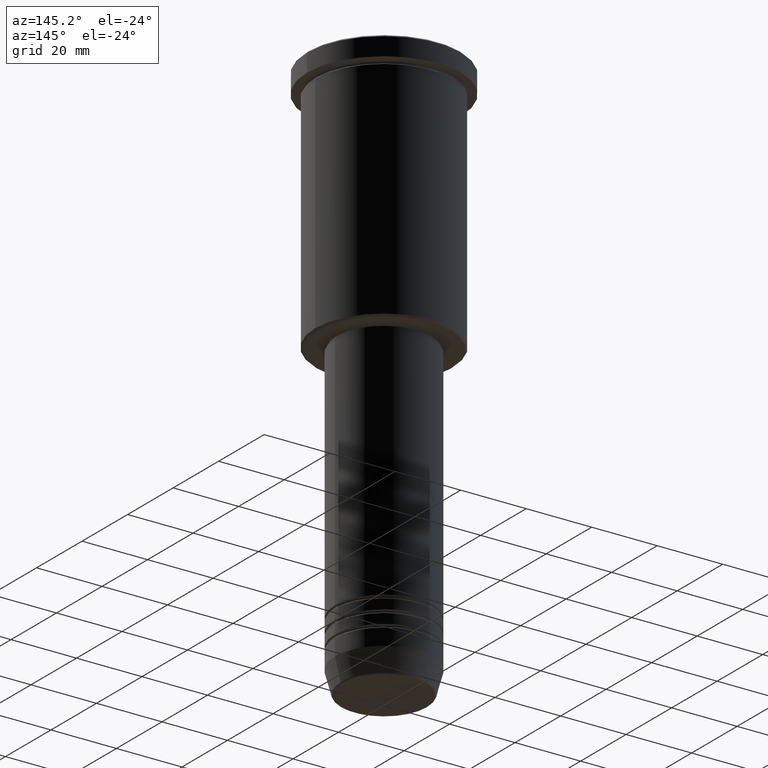
[diagram: clean part render]
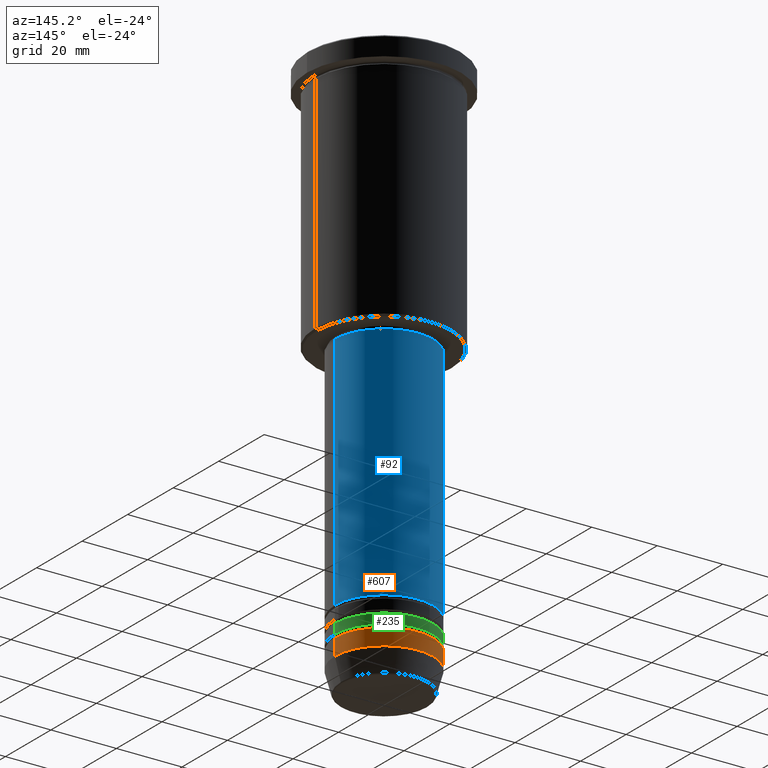
[diagram: same view with three faces highlighted in distinct colors, each labeled with its STEP entity id]
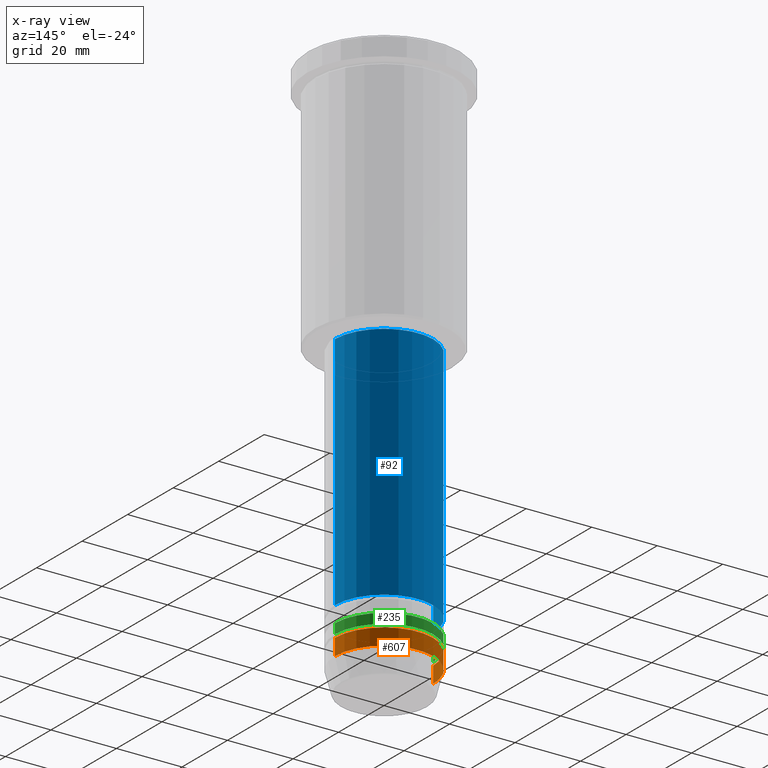
[diagram: x-ray of the same camera — body ghosted, the three highlighted faces saturated]
A machine part, auxiliary view with three faces highlighted in distinct colors.
The next image is the same camera in x-ray (body ghosted, the three faces saturated) — at least one of them is partly hidden behind the body in this view.
Their STEP definitions:

[orange] entity #607 — the highlighted cylindrical surface (partial cylindrical patch) has radius 15 mm, axis along (-0, -0, 1).
#22 = CARTESIAN_POINT ( 'NONE',  ( -15.00000000000000000, 1.836970198721029589E-15, -163.9999999999999716 ) ) ;
#27 = ORIENTED_EDGE ( 'NONE', *, *, #866, .T. ) ;
#35 = EDGE_CURVE ( 'NONE', #558, #897, #827, .T. ) ;
#36 = CARTESIAN_POINT ( 'NONE',  ( 0.000000000000000000, 0.000000000000000000, 0.000000000000000000 ) ) ;
#88 = DIRECTION ( 'NONE',  ( 1.000000000000000000, 0.000000000000000000, 0.000000000000000000 ) ) ;
#130 = VERTEX_POINT ( 'NONE', #305 ) ;
#138 = ORIENTED_EDGE ( 'NONE', *, *, #350, .F. ) ;
#145 = CIRCLE ( 'NONE', #816, 15.00000000000000000 ) ;
#220 = ORIENTED_EDGE ( 'NONE', *, *, #35, .T. ) ;
#261 = VECTOR ( 'NONE', #488, 1000.000000000000000 ) ;
#303 = FACE_OUTER_BOUND ( 'NONE', #385, .T. ) ;
#305 = CARTESIAN_POINT ( 'NONE',  ( 15.00000000000000000, 0.000000000000000000, -163.9999999999999716 ) ) ;
#317 = AXIS2_PLACEMENT_3D ( 'NONE', #507, #513, #610 ) ;
#335 = AXIS2_PLACEMENT_3D ( 'NONE', #36, #931, #1036 ) ;
#350 = EDGE_CURVE ( 'NONE', #593, #897, #930, .T. ) ;
#373 = DIRECTION ( 'NONE',  ( -0.000000000000000000, -0.000000000000000000, 1.000000000000000000 ) ) ;
#379 = CARTESIAN_POINT ( 'NONE',  ( 15.00000000000000000, 0.000000000000000000, -158.9999999999999716 ) ) ;
#385 = EDGE_LOOP ( 'NONE', ( #27, #220, #138, #431 ) ) ;
#431 = ORIENTED_EDGE ( 'NONE', *, *, #567, .F. ) ;
#488 = DIRECTION ( 'NONE',  ( -0.000000000000000000, -0.000000000000000000, 1.000000000000000000 ) ) ;
#507 = CARTESIAN_POINT ( 'NONE',  ( 0.000000000000000000, 0.000000000000000000, -158.9999999999999716 ) ) ;
#513 = DIRECTION ( 'NONE',  ( -0.000000000000000000, -0.000000000000000000, 1.000000000000000000 ) ) ;
#537 = CARTESIAN_POINT ( 'NONE',  ( -15.00000000000000000, 1.836970198721029589E-15, 0.000000000000000000 ) ) ;
#558 = VERTEX_POINT ( 'NONE', #22 ) ;
#567 = EDGE_CURVE ( 'NONE', #130, #593, #657, .T. ) ;
#576 = CARTESIAN_POINT ( 'NONE',  ( 15.00000000000000000, 0.000000000000000000, 0.000000000000000000 ) ) ;
#593 = VERTEX_POINT ( 'NONE', #379 ) ;
#607 = ADVANCED_FACE ( 'NONE', ( #303 ), #1041, .T. ) ;
#609 = DIRECTION ( 'NONE',  ( -0.000000000000000000, -0.000000000000000000, 1.000000000000000000 ) ) ;
#610 = DIRECTION ( 'NONE',  ( 1.000000000000000000, 0.000000000000000000, 0.000000000000000000 ) ) ;
#651 = VECTOR ( 'NONE', #373, 1000.000000000000000 ) ;
#657 = LINE ( 'NONE', #576, #261 ) ;
#816 = AXIS2_PLACEMENT_3D ( 'NONE', #898, #609, #88 ) ;
#827 = LINE ( 'NONE', #537, #651 ) ;
#866 = EDGE_CURVE ( 'NONE', #130, #558, #145, .T. ) ;
#897 = VERTEX_POINT ( 'NONE', #979 ) ;
#898 = CARTESIAN_POINT ( 'NONE',  ( 0.000000000000000000, 0.000000000000000000, -163.9999999999999716 ) ) ;
#930 = CIRCLE ( 'NONE', #317, 15.00000000000000000 ) ;
#931 = DIRECTION ( 'NONE',  ( -0.000000000000000000, -0.000000000000000000, 1.000000000000000000 ) ) ;
#979 = CARTESIAN_POINT ( 'NONE',  ( -15.00000000000000000, 1.836970198721029589E-15, -158.9999999999999716 ) ) ;
#1036 = DIRECTION ( 'NONE',  ( 1.000000000000000000, 0.000000000000000000, 0.000000000000000000 ) ) ;
#1041 = CYLINDRICAL_SURFACE ( 'NONE', #335, 15.00000000000000000 ) ;

[blue] entity #92 — the highlighted cylindrical surface (partial cylindrical patch) has radius 15 mm, axis along (-0, -0, 1).
#81 = LINE ( 'NONE', #1099, #968 ) ;
#92 = ADVANCED_FACE ( 'NONE', ( #1115 ), #403, .T. ) ;
#135 = ORIENTED_EDGE ( 'NONE', *, *, #389, .F. ) ;
#139 = DIRECTION ( 'NONE',  ( -0.000000000000000000, -0.000000000000000000, 1.000000000000000000 ) ) ;
#142 = AXIS2_PLACEMENT_3D ( 'NONE', #361, #801, #826 ) ;
#153 = CARTESIAN_POINT ( 'NONE',  ( 0.000000000000000000, 0.000000000000000000, -149.9999999999998579 ) ) ;
#161 = AXIS2_PLACEMENT_3D ( 'NONE', #496, #1044, #561 ) ;
#187 = AXIS2_PLACEMENT_3D ( 'NONE', #153, #139, #694 ) ;
#189 = DIRECTION ( 'NONE',  ( -0.000000000000000000, -0.000000000000000000, 1.000000000000000000 ) ) ;
#215 = EDGE_LOOP ( 'NONE', ( #539, #765, #135, #584 ) ) ;
#324 = DIRECTION ( 'NONE',  ( -0.000000000000000000, -0.000000000000000000, 1.000000000000000000 ) ) ;
#353 = CIRCLE ( 'NONE', #142, 15.00000000000000000 ) ;
#361 = CARTESIAN_POINT ( 'NONE',  ( 0.000000000000000000, 0.000000000000000000, -76.99999999999998579 ) ) ;
#389 = EDGE_CURVE ( 'NONE', #981, #1091, #353, .T. ) ;
#403 = CYLINDRICAL_SURFACE ( 'NONE', #161, 15.00000000000000000 ) ;
#420 = CARTESIAN_POINT ( 'NONE',  ( -15.00000000000000000, 1.836970198721029589E-15, -149.9999999999998579 ) ) ;
#495 = LINE ( 'NONE', #875, #654 ) ;
#496 = CARTESIAN_POINT ( 'NONE',  ( 0.000000000000000000, 0.000000000000000000, 0.000000000000000000 ) ) ;
#512 = CARTESIAN_POINT ( 'NONE',  ( 15.00000000000000000, 0.000000000000000000, -149.9999999999998579 ) ) ;
#514 = EDGE_CURVE ( 'NONE', #741, #1091, #81, .T. ) ;
#539 = ORIENTED_EDGE ( 'NONE', *, *, #808, .T. ) ;
#561 = DIRECTION ( 'NONE',  ( 1.000000000000000000, 0.000000000000000000, 0.000000000000000000 ) ) ;
#584 = ORIENTED_EDGE ( 'NONE', *, *, #686, .F. ) ;
#654 = VECTOR ( 'NONE', #324, 1000.000000000000000 ) ;
#685 = CARTESIAN_POINT ( 'NONE',  ( -15.00000000000000000, 1.836970198721029589E-15, -76.99999999999998579 ) ) ;
#686 = EDGE_CURVE ( 'NONE', #799, #981, #495, .T. ) ;
#694 = DIRECTION ( 'NONE',  ( 1.000000000000000000, 0.000000000000000000, 0.000000000000000000 ) ) ;
#741 = VERTEX_POINT ( 'NONE', #420 ) ;
#765 = ORIENTED_EDGE ( 'NONE', *, *, #514, .T. ) ;
#799 = VERTEX_POINT ( 'NONE', #512 ) ;
#801 = DIRECTION ( 'NONE',  ( -0.000000000000000000, -0.000000000000000000, 1.000000000000000000 ) ) ;
#808 = EDGE_CURVE ( 'NONE', #799, #741, #852, .T. ) ;
#826 = DIRECTION ( 'NONE',  ( 1.000000000000000000, 0.000000000000000000, 0.000000000000000000 ) ) ;
#852 = CIRCLE ( 'NONE', #187, 15.00000000000000000 ) ;
#875 = CARTESIAN_POINT ( 'NONE',  ( 15.00000000000000000, 0.000000000000000000, 0.000000000000000000 ) ) ;
#968 = VECTOR ( 'NONE', #189, 1000.000000000000000 ) ;
#981 = VERTEX_POINT ( 'NONE', #1053 ) ;
#1044 = DIRECTION ( 'NONE',  ( -0.000000000000000000, -0.000000000000000000, 1.000000000000000000 ) ) ;
#1053 = CARTESIAN_POINT ( 'NONE',  ( 15.00000000000000000, 0.000000000000000000, -76.99999999999998579 ) ) ;
#1091 = VERTEX_POINT ( 'NONE', #685 ) ;
#1099 = CARTESIAN_POINT ( 'NONE',  ( -15.00000000000000000, 1.836970198721029589E-15, 0.000000000000000000 ) ) ;
#1115 = FACE_OUTER_BOUND ( 'NONE', #215, .T. ) ;

[green] entity #235 — the highlighted cylindrical surface (partial cylindrical patch) has radius 15 mm, axis along (-0, -0, 1).
#31 = CARTESIAN_POINT ( 'NONE',  ( -15.00000000000000000, 1.836970198721029589E-15, 0.000000000000000000 ) ) ;
#84 = DIRECTION ( 'NONE',  ( -0.000000000000000000, -0.000000000000000000, 1.000000000000000000 ) ) ;
#85 = VECTOR ( 'NONE', #309, 1000.000000000000000 ) ;
#129 = FACE_OUTER_BOUND ( 'NONE', #579, .T. ) ;
#184 = AXIS2_PLACEMENT_3D ( 'NONE', #914, #1015, #1175 ) ;
#199 = EDGE_CURVE ( 'NONE', #1166, #279, #475, .T. ) ;
#235 = ADVANCED_FACE ( 'NONE', ( #129 ), #329, .T. ) ;
#242 = DIRECTION ( 'NONE',  ( -0.000000000000000000, -0.000000000000000000, 1.000000000000000000 ) ) ;
#279 = VERTEX_POINT ( 'NONE', #421 ) ;
#288 = CARTESIAN_POINT ( 'NONE',  ( 0.000000000000000000, 0.000000000000000000, -154.9999999999998579 ) ) ;
#309 = DIRECTION ( 'NONE',  ( -0.000000000000000000, -0.000000000000000000, 1.000000000000000000 ) ) ;
#329 = CYLINDRICAL_SURFACE ( 'NONE', #523, 15.00000000000000000 ) ;
#349 = VERTEX_POINT ( 'NONE', #688 ) ;
#378 = AXIS2_PLACEMENT_3D ( 'NONE', #288, #84, #619 ) ;
#388 = ORIENTED_EDGE ( 'NONE', *, *, #485, .T. ) ;
#395 = ORIENTED_EDGE ( 'NONE', *, *, #1127, .F. ) ;
#421 = CARTESIAN_POINT ( 'NONE',  ( -15.00000000000000000, 1.836970198721029589E-15, -154.9999999999998579 ) ) ;
#432 = LINE ( 'NONE', #982, #737 ) ;
#475 = LINE ( 'NONE', #31, #85 ) ;
#482 = ORIENTED_EDGE ( 'NONE', *, *, #976, .F. ) ;
#484 = CIRCLE ( 'NONE', #184, 15.00000000000000000 ) ;
#485 = EDGE_CURVE ( 'NONE', #646, #1166, #484, .T. ) ;
#502 = CARTESIAN_POINT ( 'NONE',  ( 0.000000000000000000, 0.000000000000000000, 0.000000000000000000 ) ) ;
#523 = AXIS2_PLACEMENT_3D ( 'NONE', #502, #242, #1146 ) ;
#529 = CARTESIAN_POINT ( 'NONE',  ( -15.00000000000000000, 1.836970198721029589E-15, -157.9999999999998579 ) ) ;
#579 = EDGE_LOOP ( 'NONE', ( #388, #684, #395, #482 ) ) ;
#589 = DIRECTION ( 'NONE',  ( -0.000000000000000000, -0.000000000000000000, 1.000000000000000000 ) ) ;
#619 = DIRECTION ( 'NONE',  ( 1.000000000000000000, 0.000000000000000000, 0.000000000000000000 ) ) ;
#646 = VERTEX_POINT ( 'NONE', #762 ) ;
#684 = ORIENTED_EDGE ( 'NONE', *, *, #199, .T. ) ;
#688 = CARTESIAN_POINT ( 'NONE',  ( 15.00000000000000000, 0.000000000000000000, -154.9999999999998579 ) ) ;
#737 = VECTOR ( 'NONE', #589, 1000.000000000000000 ) ;
#762 = CARTESIAN_POINT ( 'NONE',  ( 15.00000000000000000, 0.000000000000000000, -157.9999999999998579 ) ) ;
#914 = CARTESIAN_POINT ( 'NONE',  ( 0.000000000000000000, 0.000000000000000000, -157.9999999999998579 ) ) ;
#976 = EDGE_CURVE ( 'NONE', #646, #349, #432, .T. ) ;
#982 = CARTESIAN_POINT ( 'NONE',  ( 15.00000000000000000, 0.000000000000000000, 0.000000000000000000 ) ) ;
#1015 = DIRECTION ( 'NONE',  ( -0.000000000000000000, -0.000000000000000000, 1.000000000000000000 ) ) ;
#1087 = CIRCLE ( 'NONE', #378, 15.00000000000000000 ) ;
#1127 = EDGE_CURVE ( 'NONE', #349, #279, #1087, .T. ) ;
#1146 = DIRECTION ( 'NONE',  ( 1.000000000000000000, 0.000000000000000000, 0.000000000000000000 ) ) ;
#1166 = VERTEX_POINT ( 'NONE', #529 ) ;
#1175 = DIRECTION ( 'NONE',  ( 1.000000000000000000, 0.000000000000000000, 0.000000000000000000 ) ) ;